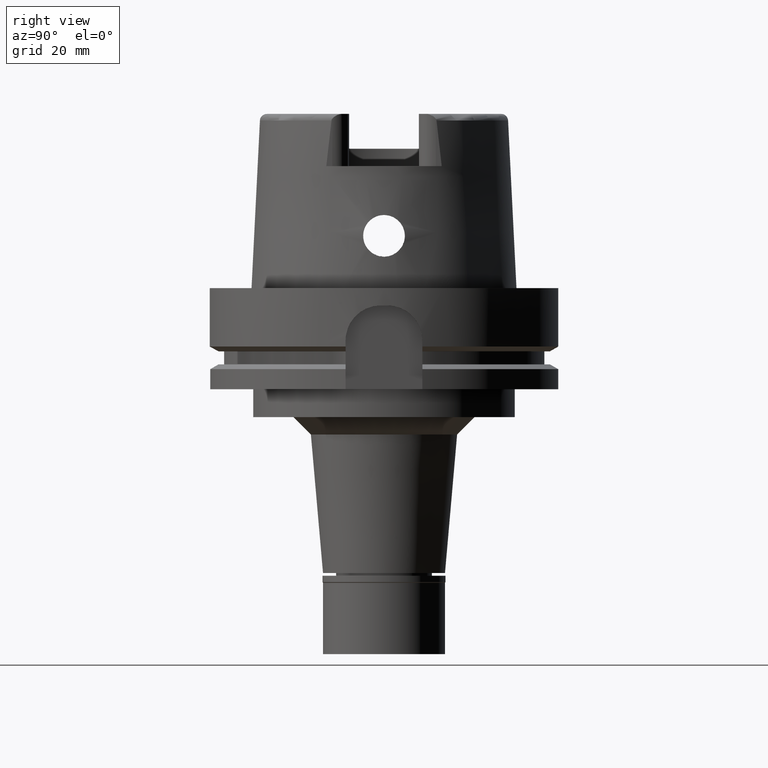
[diagram: clean part render]
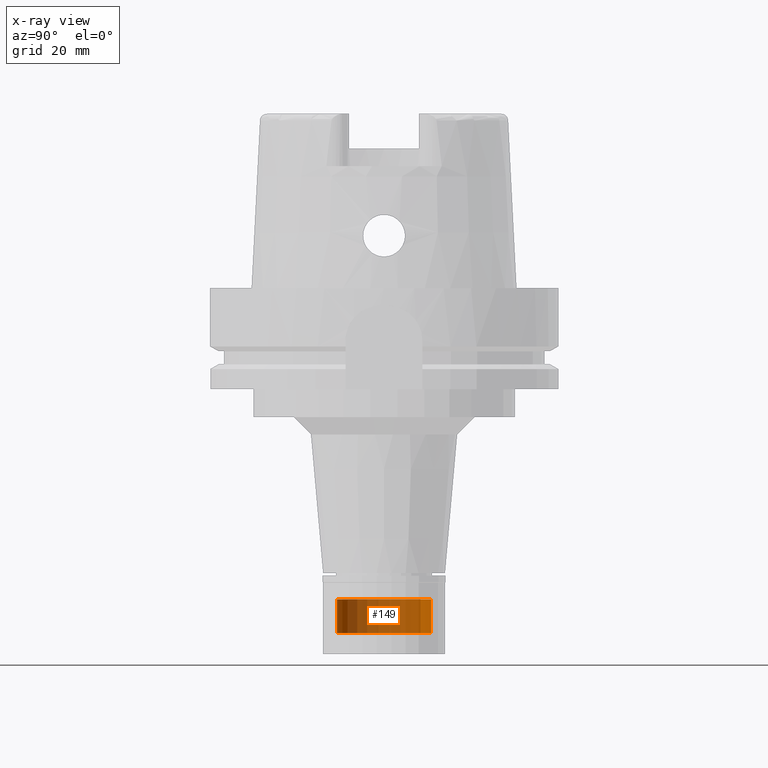
[diagram: x-ray — body ghosted, one internal face saturated and labeled with its STEP entity id]
A machine part, right view, then the same camera in x-ray: the body is ghosted and one INTERNAL B-rep face — a face not visible from any outside direction — is saturated and labeled: STEP entity #149.
In plain terms, the highlighted cylindrical surface (partial cylindrical patch) has radius 13.5 mm, axis along (0, 0, -1).
Its self-contained STEP definition (entity closure, byte-faithful):
#149 = ADVANCED_FACE ( 'NONE', ( #3982 ), #3037, .F. ) ;
#493 = CIRCLE ( 'NONE', #4009, 13.50000000000000000 ) ;
#869 = ORIENTED_EDGE ( 'NONE', *, *, #4997, .F. ) ;
#1032 = CARTESIAN_POINT ( 'NONE',  ( 0.0000000000000000000, 13.50000000000000000, -16.50000000000000000 ) ) ;
#1192 = ORIENTED_EDGE ( 'NONE', *, *, #5283, .T. ) ;
#1322 = DIRECTION ( 'NONE',  ( 0.0000000000000000000, 0.0000000000000000000, 1.000000000000000000 ) ) ;
#1380 = VECTOR ( 'NONE', #4993, 1000.000000000000000 ) ;
#1403 = VERTEX_POINT ( 'NONE', #4996 ) ;
#1639 = CARTESIAN_POINT ( 'NONE',  ( 0.0000000000000000000, -13.50000000000000000, -16.50000000000000000 ) ) ;
#1818 = DIRECTION ( 'NONE',  ( 0.0000000000000000000, 0.0000000000000000000, -1.000000000000000000 ) ) ;
#1871 = LINE ( 'NONE', #1032, #2213 ) ;
#2149 = ORIENTED_EDGE ( 'NONE', *, *, #3482, .T. ) ;
#2172 = CARTESIAN_POINT ( 'NONE',  ( 0.0000000000000000000, 0.0000000000000000000, -16.50000000000000000 ) ) ;
#2191 = CARTESIAN_POINT ( 'NONE',  ( 0.0000000000000000000, 0.0000000000000000000, 0.0000000000000000000 ) ) ;
#2213 = VECTOR ( 'NONE', #2262, 1000.000000000000000 ) ;
#2262 = DIRECTION ( 'NONE',  ( 0.0000000000000000000, 0.0000000000000000000, 1.000000000000000000 ) ) ;
#2421 = EDGE_LOOP ( 'NONE', ( #2149, #869, #1192, #5310 ) ) ;
#2897 = EDGE_CURVE ( 'NONE', #1403, #5027, #1871, .T. ) ;
#3037 = CYLINDRICAL_SURFACE ( 'NONE', #3964, 13.50000000000000000 ) ;
#3046 = DIRECTION ( 'NONE',  ( 0.0000000000000000000, 0.0000000000000000000, -1.000000000000000000 ) ) ;
#3105 = VERTEX_POINT ( 'NONE', #3259 ) ;
#3259 = CARTESIAN_POINT ( 'NONE',  ( 0.0000000000000000000, -13.50000000000000000, -6.799999999999999822 ) ) ;
#3482 = EDGE_CURVE ( 'NONE', #5027, #3105, #5397, .T. ) ;
#3499 = DIRECTION ( 'NONE',  ( 0.0000000000000000000, 1.000000000000000000, 0.0000000000000000000 ) ) ;
#3556 = DIRECTION ( 'NONE',  ( 0.0000000000000000000, -1.000000000000000000, 0.0000000000000000000 ) ) ;
#3964 = AXIS2_PLACEMENT_3D ( 'NONE', #2191, #1818, #3556 ) ;
#3982 = FACE_OUTER_BOUND ( 'NONE', #2421, .T. ) ;
#4009 = AXIS2_PLACEMENT_3D ( 'NONE', #2172, #3046, #5559 ) ;
#4417 = CARTESIAN_POINT ( 'NONE',  ( 0.0000000000000000000, 0.0000000000000000000, -6.799999999999999822 ) ) ;
#4632 = CARTESIAN_POINT ( 'NONE',  ( 0.0000000000000000000, 13.50000000000000000, -6.799999999999999822 ) ) ;
#4993 = DIRECTION ( 'NONE',  ( 0.0000000000000000000, 0.0000000000000000000, 1.000000000000000000 ) ) ;
#4996 = CARTESIAN_POINT ( 'NONE',  ( 0.0000000000000000000, 13.50000000000000000, -16.50000000000000000 ) ) ;
#4997 = EDGE_CURVE ( 'NONE', #5545, #3105, #5389, .T. ) ;
#5027 = VERTEX_POINT ( 'NONE', #4632 ) ;
#5283 = EDGE_CURVE ( 'NONE', #5545, #1403, #493, .T. ) ;
#5310 = ORIENTED_EDGE ( 'NONE', *, *, #2897, .T. ) ;
#5389 = LINE ( 'NONE', #5499, #1380 ) ;
#5397 = CIRCLE ( 'NONE', #5577, 13.50000000000000000 ) ;
#5499 = CARTESIAN_POINT ( 'NONE',  ( 0.0000000000000000000, -13.50000000000000000, -16.50000000000000000 ) ) ;
#5545 = VERTEX_POINT ( 'NONE', #1639 ) ;
#5559 = DIRECTION ( 'NONE',  ( 0.0000000000000000000, -1.000000000000000000, 0.0000000000000000000 ) ) ;
#5577 = AXIS2_PLACEMENT_3D ( 'NONE', #4417, #1322, #3499 ) ;